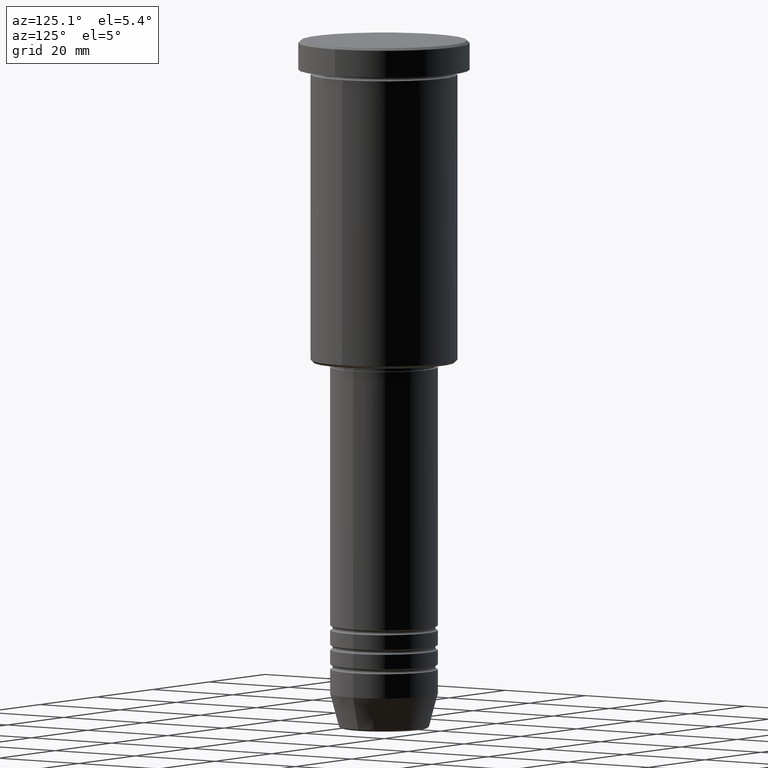
[diagram: clean part render]
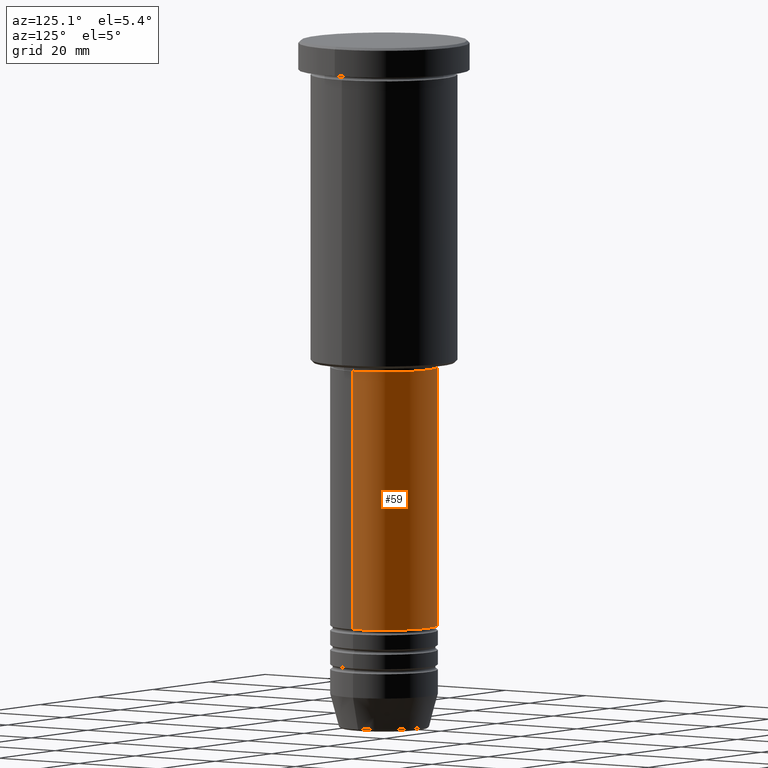
[diagram: same view with one face highlighted and labeled with its STEP entity id]
A machine part, auxiliary view. The second image highlights one B-rep face of the part: STEP entity #59.
In plain terms, the highlighted cylindrical surface (partial cylindrical patch) has radius 11 mm, axis along (-0, -0, 1).
Its self-contained STEP definition (entity closure, byte-faithful):
#22 = DIRECTION ( 'NONE',  ( -0.000000000000000000, -0.000000000000000000, 1.000000000000000000 ) ) ;
#47 = CARTESIAN_POINT ( 'NONE',  ( -11.00000000000000000, 1.347111479062088405E-15, 0.000000000000000000 ) ) ;
#59 = ADVANCED_FACE ( 'NONE', ( #373 ), #348, .T. ) ;
#90 = DIRECTION ( 'NONE',  ( -0.000000000000000000, -0.000000000000000000, 1.000000000000000000 ) ) ;
#185 = ORIENTED_EDGE ( 'NONE', *, *, #1028, .T. ) ;
#216 = LINE ( 'NONE', #47, #651 ) ;
#296 = DIRECTION ( 'NONE',  ( -0.000000000000000000, -0.000000000000000000, 1.000000000000000000 ) ) ;
#348 = CYLINDRICAL_SURFACE ( 'NONE', #1119, 11.00000000000000000 ) ;
#373 = FACE_OUTER_BOUND ( 'NONE', #443, .T. ) ;
#397 = CARTESIAN_POINT ( 'NONE',  ( 0.000000000000000000, 0.000000000000000000, -67.00000000000000000 ) ) ;
#413 = CIRCLE ( 'NONE', #873, 11.00000000000000000 ) ;
#443 = EDGE_LOOP ( 'NONE', ( #851, #185, #901, #650 ) ) ;
#541 = CARTESIAN_POINT ( 'NONE',  ( 11.00000000000000000, 0.000000000000000000, 0.000000000000000000 ) ) ;
#574 = VECTOR ( 'NONE', #90, 1000.000000000000000 ) ;
#632 = DIRECTION ( 'NONE',  ( 1.000000000000000000, 0.000000000000000000, 0.000000000000000000 ) ) ;
#650 = ORIENTED_EDGE ( 'NONE', *, *, #1127, .F. ) ;
#651 = VECTOR ( 'NONE', #1141, 1000.000000000000000 ) ;
#672 = DIRECTION ( 'NONE',  ( 1.000000000000000000, 0.000000000000000000, 0.000000000000000000 ) ) ;
#685 = CIRCLE ( 'NONE', #1142, 11.00000000000000000 ) ;
#718 = LINE ( 'NONE', #541, #574 ) ;
#728 = CARTESIAN_POINT ( 'NONE',  ( 11.00000000000000000, 0.000000000000000000, -119.9999999999999005 ) ) ;
#756 = CARTESIAN_POINT ( 'NONE',  ( 0.000000000000000000, 0.000000000000000000, -119.9999999999999005 ) ) ;
#789 = CARTESIAN_POINT ( 'NONE',  ( 11.00000000000000000, 0.000000000000000000, -67.00000000000000000 ) ) ;
#850 = CARTESIAN_POINT ( 'NONE',  ( -11.00000000000000000, 1.347111479062088405E-15, -67.00000000000000000 ) ) ;
#851 = ORIENTED_EDGE ( 'NONE', *, *, #991, .T. ) ;
#870 = VERTEX_POINT ( 'NONE', #728 ) ;
#873 = AXIS2_PLACEMENT_3D ( 'NONE', #397, #22, #672 ) ;
#901 = ORIENTED_EDGE ( 'NONE', *, *, #969, .F. ) ;
#949 = VERTEX_POINT ( 'NONE', #850 ) ;
#969 = EDGE_CURVE ( 'NONE', #1162, #949, #413, .T. ) ;
#970 = VERTEX_POINT ( 'NONE', #1039 ) ;
#991 = EDGE_CURVE ( 'NONE', #870, #970, #685, .T. ) ;
#1018 = CARTESIAN_POINT ( 'NONE',  ( 0.000000000000000000, 0.000000000000000000, 0.000000000000000000 ) ) ;
#1028 = EDGE_CURVE ( 'NONE', #970, #949, #216, .T. ) ;
#1039 = CARTESIAN_POINT ( 'NONE',  ( -11.00000000000000000, 1.347111479062088405E-15, -119.9999999999999005 ) ) ;
#1116 = DIRECTION ( 'NONE',  ( -0.000000000000000000, -0.000000000000000000, 1.000000000000000000 ) ) ;
#1119 = AXIS2_PLACEMENT_3D ( 'NONE', #1018, #296, #632 ) ;
#1120 = DIRECTION ( 'NONE',  ( 1.000000000000000000, 0.000000000000000000, 0.000000000000000000 ) ) ;
#1127 = EDGE_CURVE ( 'NONE', #870, #1162, #718, .T. ) ;
#1141 = DIRECTION ( 'NONE',  ( -0.000000000000000000, -0.000000000000000000, 1.000000000000000000 ) ) ;
#1142 = AXIS2_PLACEMENT_3D ( 'NONE', #756, #1116, #1120 ) ;
#1162 = VERTEX_POINT ( 'NONE', #789 ) ;